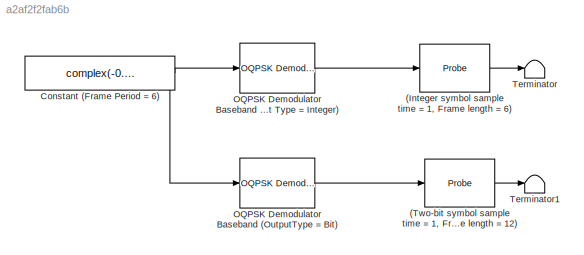
MODEL slx_a2af2f2fab6b
KIND model
BLOCK [Probe] (Integer symbol sample time = 1, Frame length = 6)
  Ports = [1, 1]
  ProbeComplexSignal = off
  ProbeWidth = off
BLOCK [Probe] (Two-bit symbol sample time = 1, Frame length = 12)
  Ports = [1, 1]
  ProbeComplexSignal = off
  ProbeWidth = off
BLOCK [Constant] Constant (Frame Period = 6)
  FramePeriod = 6
  SampleTime = 1
  SamplingMode = Frame based
  Value = complex(-0.5,1).*ones(12,1)
  VectorParams1D = off
BLOCK [Reference] OQPSK Demodulator Baseband (Output Type = Integer)  REF=commdigbbndpm3/OQPSK
Demodulator
Baseband
  OutType = Integer
  Ph = 0
  Ports = [1, 1]
  RateOptions = Enforce single-rate processing
  SourceBlock = commdigbbndpm3/OQPSK\nDemodulator\nBaseband
  SourceType = OQPSK Demodulator Baseband
  UserDataPersistent = on
  accumFracLength = 15
  accumMode = Inherit via internal rule
  accumWordLength = 32
  derotateFactorDTMode = Same word length as input
  derotateFactorWordLen = 16
  mappingInputFracLength = 15
  mappingInputMode = Same as accumulator
  mappingInputWordLength = 32
  outDtype1 = Inherit via internal rule
  outDtype2 = double
  overflowMode = Wrap
  roundingMode = Floor
BLOCK [Reference] OQPSK Demodulator Baseband (OutputType = Bit)  REF=commdigbbndpm3/OQPSK
Demodulator
Baseband
  OutType = Bit
  Ph = 0
  Ports = [1, 1]
  RateOptions = Enforce single-rate processing
  SourceBlock = commdigbbndpm3/OQPSK\nDemodulator\nBaseband
  SourceType = OQPSK Demodulator Baseband
  UserDataPersistent = on
  accumFracLength = 15
  accumMode = Inherit via internal rule
  accumWordLength = 32
  derotateFactorDTMode = Same word length as input
  derotateFactorWordLen = 16
  mappingInputFracLength = 15
  mappingInputMode = Same as accumulator
  mappingInputWordLength = 32
  outDtype1 = double
  outDtype2 = double
  overflowMode = Wrap
  roundingMode = Floor
BLOCK [Terminator] Terminator
BLOCK [Terminator] Terminator1
LINE (Integer symbol sample time = 1, Frame length = 6):1 -> Terminator:1
LINE (Two-bit symbol sample time = 1, Frame length = 12):1 -> Terminator1:1
NET Constant (Frame Period = 6):1 -> OQPSK Demodulator Baseband (Output Type = Integer):1, OQPSK Demodulator Baseband (OutputType = Bit):1
LINE OQPSK Demodulator Baseband (Output Type = Integer):1 -> (Integer symbol sample time = 1, Frame length = 6):1
LINE OQPSK Demodulator Baseband (OutputType = Bit):1 -> (Two-bit symbol sample time = 1, Frame length = 12):1
note: NET lines group one-source signal fan-out (src -> all destinations, sorted); 1:1 wires keep LINE
